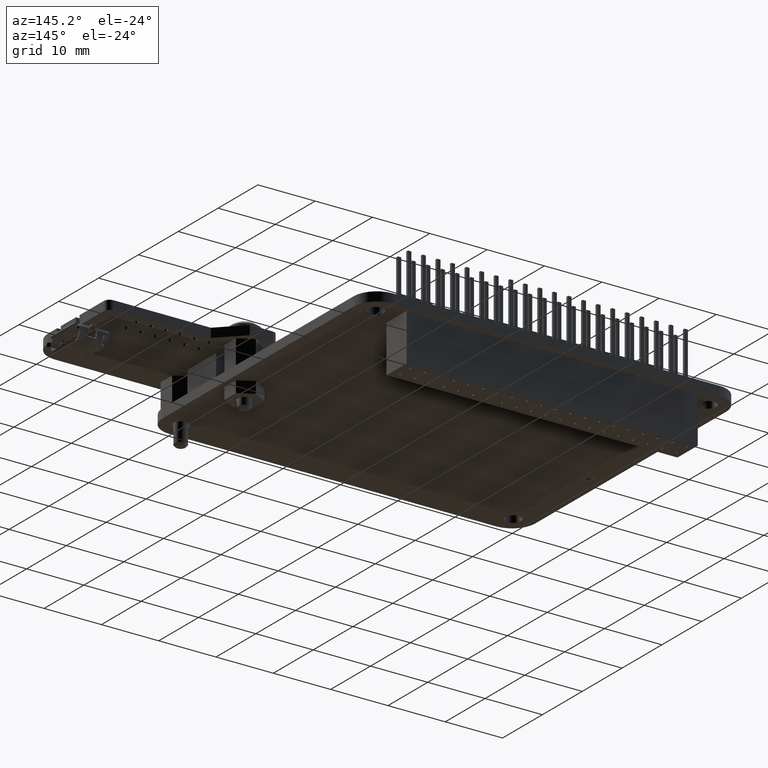
[diagram: clean part render]
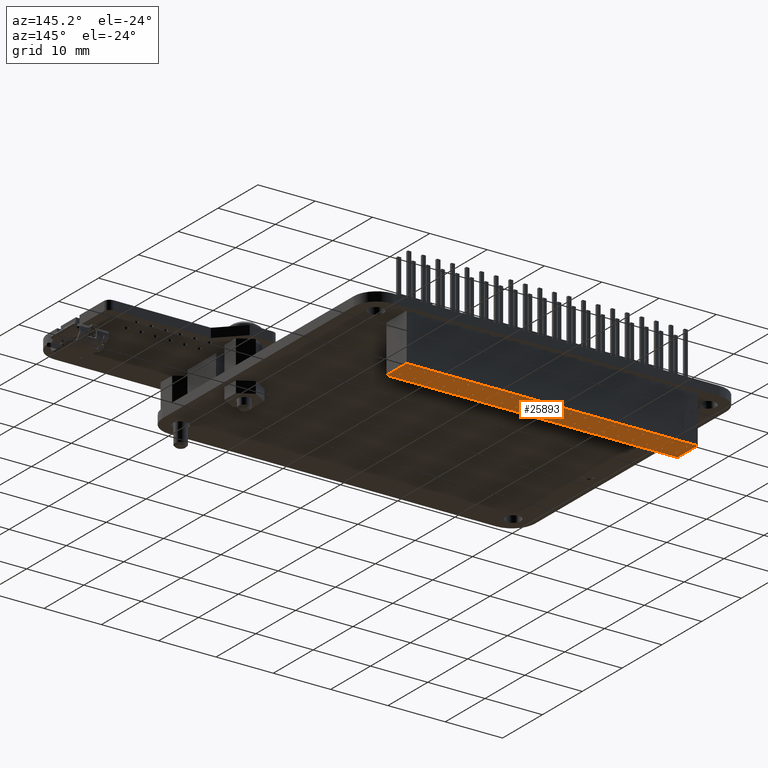
[diagram: same view with one face highlighted and labeled with its STEP entity id]
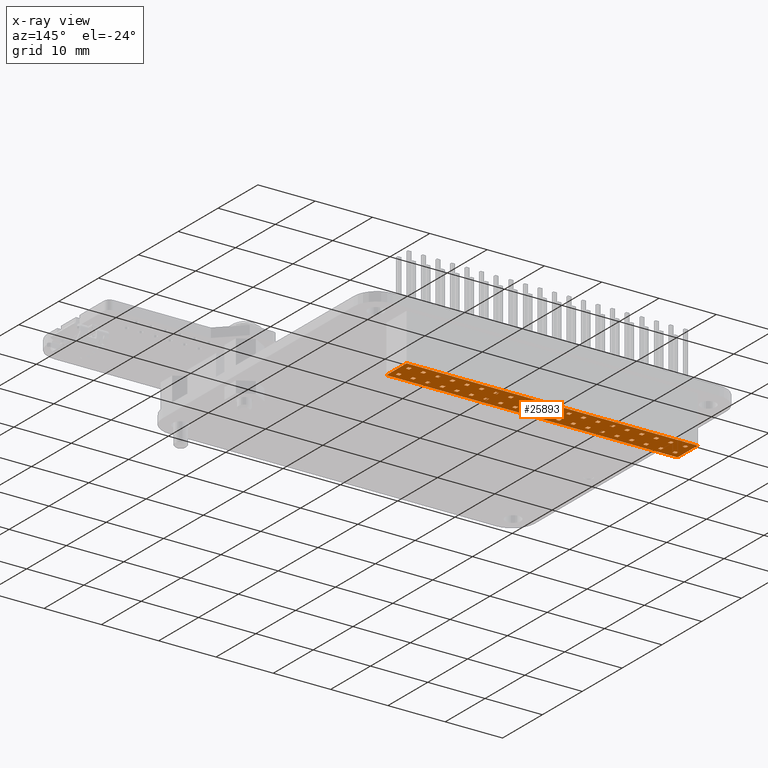
[diagram: x-ray of the same camera — body ghosted, the highlighted face saturated]
A machine part, auxiliary view. The second image highlights one B-rep face of the part: STEP entity #25893.
The next image is the same camera in x-ray: the body ghosted, the highlighted face saturated — about 0% of this face is hidden behind the body in this view.
In plain terms, the highlighted planar face has unit normal (0, 0, -1).
Its self-contained STEP definition (entity closure, byte-faithful):
#682=LINE('',#36796,#3629);
#686=LINE('',#36804,#3633);
#689=LINE('',#36810,#3636);
#692=LINE('',#36815,#3639);
#694=LINE('',#36821,#3641);
#698=LINE('',#36829,#3645);
#701=LINE('',#36835,#3648);
#704=LINE('',#36840,#3651);
#706=LINE('',#36846,#3653);
#710=LINE('',#36854,#3657);
#713=LINE('',#36860,#3660);
#716=LINE('',#36865,#3663);
#718=LINE('',#36871,#3665);
#722=LINE('',#36879,#3669);
#725=LINE('',#36885,#3672);
#728=LINE('',#36890,#3675);
#730=LINE('',#36896,#3677);
#734=LINE('',#36904,#3681);
#737=LINE('',#36910,#3684);
#740=LINE('',#36915,#3687);
#742=LINE('',#36921,#3689);
#746=LINE('',#36929,#3693);
#749=LINE('',#36935,#3696);
#752=LINE('',#36940,#3699);
#754=LINE('',#36946,#3701);
#758=LINE('',#36954,#3705);
#761=LINE('',#36960,#3708);
#764=LINE('',#36965,#3711);
#766=LINE('',#36971,#3713);
#770=LINE('',#36979,#3717);
#773=LINE('',#36985,#3720);
#776=LINE('',#36990,#3723);
#778=LINE('',#36996,#3725);
#782=LINE('',#37004,#3729);
#785=LINE('',#37010,#3732);
#788=LINE('',#37015,#3735);
#790=LINE('',#37021,#3737);
#794=LINE('',#37029,#3741);
#797=LINE('',#37035,#3744);
#800=LINE('',#37040,#3747);
#802=LINE('',#37046,#3749);
#806=LINE('',#37054,#3753);
#809=LINE('',#37060,#3756);
#812=LINE('',#37065,#3759);
#814=LINE('',#37071,#3761);
#818=LINE('',#37079,#3765);
#821=LINE('',#37085,#3768);
#824=LINE('',#37090,#3771);
#826=LINE('',#37096,#3773);
#830=LINE('',#37104,#3777);
#833=LINE('',#37110,#3780);
#836=LINE('',#37115,#3783);
#838=LINE('',#37121,#3785);
#842=LINE('',#37129,#3789);
#845=LINE('',#37135,#3792);
#848=LINE('',#37140,#3795);
#850=LINE('',#37146,#3797);
#854=LINE('',#37154,#3801);
#857=LINE('',#37160,#3804);
#860=LINE('',#37165,#3807);
#862=LINE('',#37171,#3809);
#866=LINE('',#37179,#3813);
#869=LINE('',#37185,#3816);
#872=LINE('',#37190,#3819);
#874=LINE('',#37196,#3821);
#878=LINE('',#37204,#3825);
#881=LINE('',#37210,#3828);
#884=LINE('',#37215,#3831);
#886=LINE('',#37221,#3833);
#890=LINE('',#37229,#3837);
#893=LINE('',#37235,#3840);
#896=LINE('',#37240,#3843);
#898=LINE('',#37246,#3845);
#902=LINE('',#37254,#3849);
#905=LINE('',#37260,#3852);
#908=LINE('',#37265,#3855);
#910=LINE('',#37271,#3857);
#914=LINE('',#37279,#3861);
#917=LINE('',#37285,#3864);
#920=LINE('',#37290,#3867);
#922=LINE('',#37296,#3869);
#926=LINE('',#37304,#3873);
#929=LINE('',#37310,#3876);
#932=LINE('',#37315,#3879);
#934=LINE('',#37321,#3881);
#938=LINE('',#37329,#3885);
#941=LINE('',#37335,#3888);
#944=LINE('',#37340,#3891);
#946=LINE('',#37346,#3893);
#950=LINE('',#37354,#3897);
#953=LINE('',#37360,#3900);
#956=LINE('',#37365,#3903);
#958=LINE('',#37371,#3905);
#962=LINE('',#37379,#3909);
#965=LINE('',#37385,#3912);
#968=LINE('',#37390,#3915);
#970=LINE('',#37396,#3917);
#974=LINE('',#37404,#3921);
#977=LINE('',#37410,#3924);
#980=LINE('',#37415,#3927);
#982=LINE('',#37421,#3929);
#986=LINE('',#37429,#3933);
#989=LINE('',#37435,#3936);
#992=LINE('',#37440,#3939);
#994=LINE('',#37446,#3941);
#998=LINE('',#37454,#3945);
#1001=LINE('',#37460,#3948);
#1004=LINE('',#37465,#3951);
#1006=LINE('',#37471,#3953);
#1010=LINE('',#37479,#3957);
#1013=LINE('',#37485,#3960);
#1016=LINE('',#37490,#3963);
#1018=LINE('',#37496,#3965);
#1022=LINE('',#37504,#3969);
#1025=LINE('',#37510,#3972);
#1028=LINE('',#37515,#3975);
#1030=LINE('',#37521,#3977);
#1034=LINE('',#37529,#3981);
#1037=LINE('',#37535,#3984);
#1040=LINE('',#37540,#3987);
#1042=LINE('',#37546,#3989);
#1046=LINE('',#37554,#3993);
#1049=LINE('',#37560,#3996);
#1052=LINE('',#37565,#3999);
#1054=LINE('',#37571,#4001);
#1058=LINE('',#37579,#4005);
#1061=LINE('',#37585,#4008);
#1064=LINE('',#37590,#4011);
#1066=LINE('',#37596,#4013);
#1070=LINE('',#37604,#4017);
#1073=LINE('',#37610,#4020);
#1076=LINE('',#37615,#4023);
#1078=LINE('',#37621,#4025);
#1082=LINE('',#37629,#4029);
#1085=LINE('',#37635,#4032);
#1088=LINE('',#37640,#4035);
#1090=LINE('',#37646,#4037);
#1094=LINE('',#37654,#4041);
#1097=LINE('',#37660,#4044);
#1100=LINE('',#37665,#4047);
#1102=LINE('',#37671,#4049);
#1106=LINE('',#37679,#4053);
#1109=LINE('',#37685,#4056);
#1112=LINE('',#37690,#4059);
#1114=LINE('',#37696,#4061);
#1118=LINE('',#37704,#4065);
#1121=LINE('',#37710,#4068);
#1124=LINE('',#37715,#4071);
#1126=LINE('',#37721,#4073);
#1130=LINE('',#37729,#4077);
#1133=LINE('',#37735,#4080);
#1136=LINE('',#37740,#4083);
#1138=LINE('',#37746,#4085);
#1142=LINE('',#37754,#4089);
#1145=LINE('',#37760,#4092);
#1148=LINE('',#37765,#4095);
#1462=LINE('',#38434,#4409);
#1466=LINE('',#38442,#4413);
#1469=LINE('',#38448,#4416);
#1472=LINE('',#38453,#4419);
#1483=LINE('',#38477,#4430);
#1485=LINE('',#38481,#4432);
#1487=LINE('',#38485,#4434);
#1489=LINE('',#38488,#4436);
#3629=VECTOR('',#29628,10.);
#3633=VECTOR('',#29634,10.);
#3636=VECTOR('',#29639,10.);
#3639=VECTOR('',#29644,10.);
#3641=VECTOR('',#29650,10.);
#3645=VECTOR('',#29656,10.);
#3648=VECTOR('',#29661,10.);
#3651=VECTOR('',#29666,10.);
#3653=VECTOR('',#29672,10.);
#3657=VECTOR('',#29678,10.);
#3660=VECTOR('',#29683,10.);
#3663=VECTOR('',#29688,10.);
#3665=VECTOR('',#29694,10.);
#3669=VECTOR('',#29700,10.);
#3672=VECTOR('',#29705,10.);
#3675=VECTOR('',#29710,10.);
#3677=VECTOR('',#29716,10.);
#3681=VECTOR('',#29722,10.);
#3684=VECTOR('',#29727,10.);
#3687=VECTOR('',#29732,10.);
#3689=VECTOR('',#29738,10.);
#3693=VECTOR('',#29744,10.);
#3696=VECTOR('',#29749,10.);
#3699=VECTOR('',#29754,10.);
#3701=VECTOR('',#29760,10.);
#3705=VECTOR('',#29766,10.);
#3708=VECTOR('',#29771,10.);
#3711=VECTOR('',#29776,10.);
#3713=VECTOR('',#29782,10.);
#3717=VECTOR('',#29788,10.);
#3720=VECTOR('',#29793,10.);
#3723=VECTOR('',#29798,10.);
#3725=VECTOR('',#29804,10.);
#3729=VECTOR('',#29810,10.);
#3732=VECTOR('',#29815,10.);
#3735=VECTOR('',#29820,10.);
#3737=VECTOR('',#29826,10.);
#3741=VECTOR('',#29832,10.);
#3744=VECTOR('',#29837,10.);
#3747=VECTOR('',#29842,10.);
#3749=VECTOR('',#29848,10.);
#3753=VECTOR('',#29854,10.);
#3756=VECTOR('',#29859,10.);
#3759=VECTOR('',#29864,10.);
#3761=VECTOR('',#29870,10.);
#3765=VECTOR('',#29876,10.);
#3768=VECTOR('',#29881,10.);
#3771=VECTOR('',#29886,10.);
#3773=VECTOR('',#29892,10.);
#3777=VECTOR('',#29898,10.);
#3780=VECTOR('',#29903,10.);
#3783=VECTOR('',#29908,10.);
#3785=VECTOR('',#29914,10.);
#3789=VECTOR('',#29920,10.);
#3792=VECTOR('',#29925,10.);
#3795=VECTOR('',#29930,10.);
#3797=VECTOR('',#29936,10.);
#3801=VECTOR('',#29942,10.);
#3804=VECTOR('',#29947,10.);
#3807=VECTOR('',#29952,10.);
#3809=VECTOR('',#29958,10.);
#3813=VECTOR('',#29964,10.);
#3816=VECTOR('',#29969,10.);
#3819=VECTOR('',#29974,10.);
#3821=VECTOR('',#29980,10.);
#3825=VECTOR('',#29986,10.);
#3828=VECTOR('',#29991,10.);
#3831=VECTOR('',#29996,10.);
#3833=VECTOR('',#30002,10.);
#3837=VECTOR('',#30008,10.);
#3840=VECTOR('',#30013,10.);
#3843=VECTOR('',#30018,10.);
#3845=VECTOR('',#30024,10.);
#3849=VECTOR('',#30030,10.);
#3852=VECTOR('',#30035,10.);
#3855=VECTOR('',#30040,10.);
#3857=VECTOR('',#30046,10.);
#3861=VECTOR('',#30052,10.);
#3864=VECTOR('',#30057,10.);
#3867=VECTOR('',#30062,10.);
#3869=VECTOR('',#30068,10.);
#3873=VECTOR('',#30074,10.);
#3876=VECTOR('',#30079,10.);
#3879=VECTOR('',#30084,10.);
#3881=VECTOR('',#30090,10.);
#3885=VECTOR('',#30096,10.);
#3888=VECTOR('',#30101,10.);
#3891=VECTOR('',#30106,10.);
#3893=VECTOR('',#30112,10.);
#3897=VECTOR('',#30118,10.);
#3900=VECTOR('',#30123,10.);
#3903=VECTOR('',#30128,10.);
#3905=VECTOR('',#30134,10.);
#3909=VECTOR('',#30140,10.);
#3912=VECTOR('',#30145,10.);
#3915=VECTOR('',#30150,10.);
#3917=VECTOR('',#30156,10.);
#3921=VECTOR('',#30162,10.);
#3924=VECTOR('',#30167,10.);
#3927=VECTOR('',#30172,10.);
#3929=VECTOR('',#30178,10.);
#3933=VECTOR('',#30184,10.);
#3936=VECTOR('',#30189,10.);
#3939=VECTOR('',#30194,10.);
#3941=VECTOR('',#30200,10.);
#3945=VECTOR('',#30206,10.);
#3948=VECTOR('',#30211,10.);
#3951=VECTOR('',#30216,10.);
#3953=VECTOR('',#30222,10.);
#3957=VECTOR('',#30228,10.);
#3960=VECTOR('',#30233,10.);
#3963=VECTOR('',#30238,10.);
#3965=VECTOR('',#30244,10.);
#3969=VECTOR('',#30250,10.);
#3972=VECTOR('',#30255,10.);
#3975=VECTOR('',#30260,10.);
#3977=VECTOR('',#30266,10.);
#3981=VECTOR('',#30272,10.);
#3984=VECTOR('',#30277,10.);
#3987=VECTOR('',#30282,10.);
#3989=VECTOR('',#30288,10.);
#3993=VECTOR('',#30294,10.);
#3996=VECTOR('',#30299,10.);
#3999=VECTOR('',#30304,10.);
#4001=VECTOR('',#30310,10.);
#4005=VECTOR('',#30316,10.);
#4008=VECTOR('',#30321,10.);
#4011=VECTOR('',#30326,10.);
#4013=VECTOR('',#30332,10.);
#4017=VECTOR('',#30338,10.);
#4020=VECTOR('',#30343,10.);
#4023=VECTOR('',#30348,10.);
#4025=VECTOR('',#30354,10.);
#4029=VECTOR('',#30360,10.);
#4032=VECTOR('',#30365,10.);
#4035=VECTOR('',#30370,10.);
#4037=VECTOR('',#30376,10.);
#4041=VECTOR('',#30382,10.);
#4044=VECTOR('',#30387,10.);
#4047=VECTOR('',#30392,10.);
#4049=VECTOR('',#30398,10.);
#4053=VECTOR('',#30404,10.);
#4056=VECTOR('',#30409,10.);
#4059=VECTOR('',#30414,10.);
#4061=VECTOR('',#30420,10.);
#4065=VECTOR('',#30426,10.);
#4068=VECTOR('',#30431,10.);
#4071=VECTOR('',#30436,10.);
#4073=VECTOR('',#30442,10.);
#4077=VECTOR('',#30448,10.);
#4080=VECTOR('',#30453,10.);
#4083=VECTOR('',#30458,10.);
#4085=VECTOR('',#30464,10.);
#4089=VECTOR('',#30470,10.);
#4092=VECTOR('',#30475,10.);
#4095=VECTOR('',#30480,10.);
#4409=VECTOR('',#31188,10.);
#4413=VECTOR('',#31194,10.);
#4416=VECTOR('',#31199,10.);
#4419=VECTOR('',#31204,10.);
#4430=VECTOR('',#31229,10.);
#4432=VECTOR('',#31233,10.);
#4434=VECTOR('',#31237,10.);
#4436=VECTOR('',#31241,10.);
#6630=PLANE('',#27382);
#8454=FACE_BOUND('',#10714,.T.);
#8455=FACE_BOUND('',#10715,.T.);
#8456=FACE_BOUND('',#10716,.T.);
#8457=FACE_BOUND('',#10717,.T.);
#8458=FACE_BOUND('',#10718,.T.);
#8459=FACE_BOUND('',#10719,.T.);
#8460=FACE_BOUND('',#10720,.T.);
#8461=FACE_BOUND('',#10721,.T.);
#8462=FACE_BOUND('',#10722,.T.);
#8463=FACE_BOUND('',#10723,.T.);
#8464=FACE_BOUND('',#10724,.T.);
#8465=FACE_BOUND('',#10725,.T.);
#8466=FACE_BOUND('',#10726,.T.);
#8467=FACE_BOUND('',#10727,.T.);
#8468=FACE_BOUND('',#10728,.T.);
#8469=FACE_BOUND('',#10729,.T.);
#8470=FACE_BOUND('',#10730,.T.);
#8471=FACE_BOUND('',#10731,.T.);
#8472=FACE_BOUND('',#10732,.T.);
#8473=FACE_BOUND('',#10733,.T.);
#8474=FACE_BOUND('',#10734,.T.);
#8475=FACE_BOUND('',#10735,.T.);
#8476=FACE_BOUND('',#10736,.T.);
#8477=FACE_BOUND('',#10737,.T.);
#8478=FACE_BOUND('',#10738,.T.);
#8479=FACE_BOUND('',#10739,.T.);
#8480=FACE_BOUND('',#10740,.T.);
#8481=FACE_BOUND('',#10741,.T.);
#8482=FACE_BOUND('',#10742,.T.);
#8483=FACE_BOUND('',#10743,.T.);
#8484=FACE_BOUND('',#10744,.T.);
#8485=FACE_BOUND('',#10745,.T.);
#8486=FACE_BOUND('',#10746,.T.);
#8487=FACE_BOUND('',#10747,.T.);
#8488=FACE_BOUND('',#10748,.T.);
#8489=FACE_BOUND('',#10749,.T.);
#8490=FACE_BOUND('',#10750,.T.);
#8491=FACE_BOUND('',#10751,.T.);
#8492=FACE_BOUND('',#10752,.T.);
#8493=FACE_BOUND('',#10753,.T.);
#9211=FACE_OUTER_BOUND('',#10713,.T.);
#10713=EDGE_LOOP('',(#20704,#20705,#20706,#20707));
#10714=EDGE_LOOP('',(#20708,#20709,#20710,#20711));
#10715=EDGE_LOOP('',(#20712,#20713,#20714,#20715));
#10716=EDGE_LOOP('',(#20716,#20717,#20718,#20719));
#10717=EDGE_LOOP('',(#20720,#20721,#20722,#20723));
#10718=EDGE_LOOP('',(#20724,#20725,#20726,#20727));
#10719=EDGE_LOOP('',(#20728,#20729,#20730,#20731));
#10720=EDGE_LOOP('',(#20732,#20733,#20734,#20735));
#10721=EDGE_LOOP('',(#20736,#20737,#20738,#20739));
#10722=EDGE_LOOP('',(#20740,#20741,#20742,#20743));
#10723=EDGE_LOOP('',(#20744,#20745,#20746,#20747));
#10724=EDGE_LOOP('',(#20748,#20749,#20750,#20751));
#10725=EDGE_LOOP('',(#20752,#20753,#20754,#20755));
#10726=EDGE_LOOP('',(#20756,#20757,#20758,#20759));
#10727=EDGE_LOOP('',(#20760,#20761,#20762,#20763));
#10728=EDGE_LOOP('',(#20764,#20765,#20766,#20767));
#10729=EDGE_LOOP('',(#20768,#20769,#20770,#20771));
#10730=EDGE_LOOP('',(#20772,#20773,#20774,#20775));
#10731=EDGE_LOOP('',(#20776,#20777,#20778,#20779));
#10732=EDGE_LOOP('',(#20780,#20781,#20782,#20783));
#10733=EDGE_LOOP('',(#20784,#20785,#20786,#20787));
#10734=EDGE_LOOP('',(#20788,#20789,#20790,#20791));
#10735=EDGE_LOOP('',(#20792,#20793,#20794,#20795));
#10736=EDGE_LOOP('',(#20796,#20797,#20798,#20799));
#10737=EDGE_LOOP('',(#20800,#20801,#20802,#20803));
#10738=EDGE_LOOP('',(#20804,#20805,#20806,#20807));
#10739=EDGE_LOOP('',(#20808,#20809,#20810,#20811));
#10740=EDGE_LOOP('',(#20812,#20813,#20814,#20815));
#10741=EDGE_LOOP('',(#20816,#20817,#20818,#20819));
#10742=EDGE_LOOP('',(#20820,#20821,#20822,#20823));
#10743=EDGE_LOOP('',(#20824,#20825,#20826,#20827));
#10744=EDGE_LOOP('',(#20828,#20829,#20830,#20831));
#10745=EDGE_LOOP('',(#20832,#20833,#20834,#20835));
#10746=EDGE_LOOP('',(#20836,#20837,#20838,#20839));
#10747=EDGE_LOOP('',(#20840,#20841,#20842,#20843));
#10748=EDGE_LOOP('',(#20844,#20845,#20846,#20847));
#10749=EDGE_LOOP('',(#20848,#20849,#20850,#20851));
#10750=EDGE_LOOP('',(#20852,#20853,#20854,#20855));
#10751=EDGE_LOOP('',(#20856,#20857,#20858,#20859));
#10752=EDGE_LOOP('',(#20860,#20861,#20862,#20863));
#10753=EDGE_LOOP('',(#20864,#20865,#20866,#20867));
#12730=VERTEX_POINT('',#36794);
#12731=VERTEX_POINT('',#36795);
#12734=VERTEX_POINT('',#36803);
#12736=VERTEX_POINT('',#36809);
#12738=VERTEX_POINT('',#36819);
#12739=VERTEX_POINT('',#36820);
#12742=VERTEX_POINT('',#36828);
#12744=VERTEX_POINT('',#36834);
#12746=VERTEX_POINT('',#36844);
#12747=VERTEX_POINT('',#36845);
#12750=VERTEX_POINT('',#36853);
#12752=VERTEX_POINT('',#36859);
#12754=VERTEX_POINT('',#36869);
#12755=VERTEX_POINT('',#36870);
#12758=VERTEX_POINT('',#36878);
#12760=VERTEX_POINT('',#36884);
#12762=VERTEX_POINT('',#36894);
#12763=VERTEX_POINT('',#36895);
#12766=VERTEX_POINT('',#36903);
#12768=VERTEX_POINT('',#36909);
#12770=VERTEX_POINT('',#36919);
#12771=VERTEX_POINT('',#36920);
#12774=VERTEX_POINT('',#36928);
#12776=VERTEX_POINT('',#36934);
#12778=VERTEX_POINT('',#36944);
#12779=VERTEX_POINT('',#36945);
#12782=VERTEX_POINT('',#36953);
#12784=VERTEX_POINT('',#36959);
#12786=VERTEX_POINT('',#36969);
#12787=VERTEX_POINT('',#36970);
#12790=VERTEX_POINT('',#36978);
#12792=VERTEX_POINT('',#36984);
#12794=VERTEX_POINT('',#36994);
#12795=VERTEX_POINT('',#36995);
#12798=VERTEX_POINT('',#37003);
#12800=VERTEX_POINT('',#37009);
#12802=VERTEX_POINT('',#37019);
#12803=VERTEX_POINT('',#37020);
#12806=VERTEX_POINT('',#37028);
#12808=VERTEX_POINT('',#37034);
#12810=VERTEX_POINT('',#37044);
#12811=VERTEX_POINT('',#37045);
#12814=VERTEX_POINT('',#37053);
#12816=VERTEX_POINT('',#37059);
#12818=VERTEX_POINT('',#37069);
#12819=VERTEX_POINT('',#37070);
#12822=VERTEX_POINT('',#37078);
#12824=VERTEX_POINT('',#37084);
#12826=VERTEX_POINT('',#37094);
#12827=VERTEX_POINT('',#37095);
#12830=VERTEX_POINT('',#37103);
#12832=VERTEX_POINT('',#37109);
#12834=VERTEX_POINT('',#37119);
#12835=VERTEX_POINT('',#37120);
#12838=VERTEX_POINT('',#37128);
#12840=VERTEX_POINT('',#37134);
#12842=VERTEX_POINT('',#37144);
#12843=VERTEX_POINT('',#37145);
#12846=VERTEX_POINT('',#37153);
#12848=VERTEX_POINT('',#37159);
#12850=VERTEX_POINT('',#37169);
#12851=VERTEX_POINT('',#37170);
#12854=VERTEX_POINT('',#37178);
#12856=VERTEX_POINT('',#37184);
#12858=VERTEX_POINT('',#37194);
#12859=VERTEX_POINT('',#37195);
#12862=VERTEX_POINT('',#37203);
#12864=VERTEX_POINT('',#37209);
#12866=VERTEX_POINT('',#37219);
#12867=VERTEX_POINT('',#37220);
#12870=VERTEX_POINT('',#37228);
#12872=VERTEX_POINT('',#37234);
#12874=VERTEX_POINT('',#37244);
#12875=VERTEX_POINT('',#37245);
#12878=VERTEX_POINT('',#37253);
#12880=VERTEX_POINT('',#37259);
#12882=VERTEX_POINT('',#37269);
#12883=VERTEX_POINT('',#37270);
#12886=VERTEX_POINT('',#37278);
#12888=VERTEX_POINT('',#37284);
#12890=VERTEX_POINT('',#37294);
#12891=VERTEX_POINT('',#37295);
#12894=VERTEX_POINT('',#37303);
#12896=VERTEX_POINT('',#37309);
#12898=VERTEX_POINT('',#37319);
#12899=VERTEX_POINT('',#37320);
#12902=VERTEX_POINT('',#37328);
#12904=VERTEX_POINT('',#37334);
#12906=VERTEX_POINT('',#37344);
#12907=VERTEX_POINT('',#37345);
#12910=VERTEX_POINT('',#37353);
#12912=VERTEX_POINT('',#37359);
#12914=VERTEX_POINT('',#37369);
#12915=VERTEX_POINT('',#37370);
#12918=VERTEX_POINT('',#37378);
#12920=VERTEX_POINT('',#37384);
#12922=VERTEX_POINT('',#37394);
#12923=VERTEX_POINT('',#37395);
#12926=VERTEX_POINT('',#37403);
#12928=VERTEX_POINT('',#37409);
#12930=VERTEX_POINT('',#37419);
#12931=VERTEX_POINT('',#37420);
#12934=VERTEX_POINT('',#37428);
#12936=VERTEX_POINT('',#37434);
#12938=VERTEX_POINT('',#37444);
#12939=VERTEX_POINT('',#37445);
#12942=VERTEX_POINT('',#37453);
#12944=VERTEX_POINT('',#37459);
#12946=VERTEX_POINT('',#37469);
#12947=VERTEX_POINT('',#37470);
#12950=VERTEX_POINT('',#37478);
#12952=VERTEX_POINT('',#37484);
#12954=VERTEX_POINT('',#37494);
#12955=VERTEX_POINT('',#37495);
#12958=VERTEX_POINT('',#37503);
#12960=VERTEX_POINT('',#37509);
#12962=VERTEX_POINT('',#37519);
#12963=VERTEX_POINT('',#37520);
#12966=VERTEX_POINT('',#37528);
#12968=VERTEX_POINT('',#37534);
#12970=VERTEX_POINT('',#37544);
#12971=VERTEX_POINT('',#37545);
#12974=VERTEX_POINT('',#37553);
#12976=VERTEX_POINT('',#37559);
#12978=VERTEX_POINT('',#37569);
#12979=VERTEX_POINT('',#37570);
#12982=VERTEX_POINT('',#37578);
#12984=VERTEX_POINT('',#37584);
#12986=VERTEX_POINT('',#37594);
#12987=VERTEX_POINT('',#37595);
#12990=VERTEX_POINT('',#37603);
#12992=VERTEX_POINT('',#37609);
#12994=VERTEX_POINT('',#37619);
#12995=VERTEX_POINT('',#37620);
#12998=VERTEX_POINT('',#37628);
#13000=VERTEX_POINT('',#37634);
#13002=VERTEX_POINT('',#37644);
#13003=VERTEX_POINT('',#37645);
#13006=VERTEX_POINT('',#37653);
#13008=VERTEX_POINT('',#37659);
#13010=VERTEX_POINT('',#37669);
#13011=VERTEX_POINT('',#37670);
#13014=VERTEX_POINT('',#37678);
#13016=VERTEX_POINT('',#37684);
#13018=VERTEX_POINT('',#37694);
#13019=VERTEX_POINT('',#37695);
#13022=VERTEX_POINT('',#37703);
#13024=VERTEX_POINT('',#37709);
#13026=VERTEX_POINT('',#37719);
#13027=VERTEX_POINT('',#37720);
#13030=VERTEX_POINT('',#37728);
#13032=VERTEX_POINT('',#37734);
#13034=VERTEX_POINT('',#37744);
#13035=VERTEX_POINT('',#37745);
#13038=VERTEX_POINT('',#37753);
#13040=VERTEX_POINT('',#37759);
#13198=VERTEX_POINT('',#38432);
#13199=VERTEX_POINT('',#38433);
#13202=VERTEX_POINT('',#38441);
#13204=VERTEX_POINT('',#38447);
#13210=VERTEX_POINT('',#38474);
#13211=VERTEX_POINT('',#38476);
#13212=VERTEX_POINT('',#38480);
#13213=VERTEX_POINT('',#38484);
#15202=EDGE_CURVE('',#12730,#12731,#682,.T.);
#15206=EDGE_CURVE('',#12734,#12730,#686,.T.);
#15209=EDGE_CURVE('',#12736,#12734,#689,.T.);
#15212=EDGE_CURVE('',#12731,#12736,#692,.T.);
#15214=EDGE_CURVE('',#12738,#12739,#694,.T.);
#15218=EDGE_CURVE('',#12742,#12738,#698,.T.);
#15221=EDGE_CURVE('',#12744,#12742,#701,.T.);
#15224=EDGE_CURVE('',#12739,#12744,#704,.T.);
#15226=EDGE_CURVE('',#12746,#12747,#706,.T.);
#15230=EDGE_CURVE('',#12750,#12746,#710,.T.);
#15233=EDGE_CURVE('',#12752,#12750,#713,.T.);
#15236=EDGE_CURVE('',#12747,#12752,#716,.T.);
#15238=EDGE_CURVE('',#12754,#12755,#718,.T.);
#15242=EDGE_CURVE('',#12758,#12754,#722,.T.);
#15245=EDGE_CURVE('',#12760,#12758,#725,.T.);
#15248=EDGE_CURVE('',#12755,#12760,#728,.T.);
#15250=EDGE_CURVE('',#12762,#12763,#730,.T.);
#15254=EDGE_CURVE('',#12766,#12762,#734,.T.);
#15257=EDGE_CURVE('',#12768,#12766,#737,.T.);
#15260=EDGE_CURVE('',#12763,#12768,#740,.T.);
#15262=EDGE_CURVE('',#12770,#12771,#742,.T.);
#15266=EDGE_CURVE('',#12774,#12770,#746,.T.);
#15269=EDGE_CURVE('',#12776,#12774,#749,.T.);
#15272=EDGE_CURVE('',#12771,#12776,#752,.T.);
#15274=EDGE_CURVE('',#12778,#12779,#754,.T.);
#15278=EDGE_CURVE('',#12782,#12778,#758,.T.);
#15281=EDGE_CURVE('',#12784,#12782,#761,.T.);
#15284=EDGE_CURVE('',#12779,#12784,#764,.T.);
#15286=EDGE_CURVE('',#12786,#12787,#766,.T.);
#15290=EDGE_CURVE('',#12790,#12786,#770,.T.);
#15293=EDGE_CURVE('',#12792,#12790,#773,.T.);
#15296=EDGE_CURVE('',#12787,#12792,#776,.T.);
#15298=EDGE_CURVE('',#12794,#12795,#778,.T.);
#15302=EDGE_CURVE('',#12798,#12794,#782,.T.);
#15305=EDGE_CURVE('',#12800,#12798,#785,.T.);
#15308=EDGE_CURVE('',#12795,#12800,#788,.T.);
#15310=EDGE_CURVE('',#12802,#12803,#790,.T.);
#15314=EDGE_CURVE('',#12806,#12802,#794,.T.);
#15317=EDGE_CURVE('',#12808,#12806,#797,.T.);
#15320=EDGE_CURVE('',#12803,#12808,#800,.T.);
#15322=EDGE_CURVE('',#12810,#12811,#802,.T.);
#15326=EDGE_CURVE('',#12814,#12810,#806,.T.);
#15329=EDGE_CURVE('',#12816,#12814,#809,.T.);
#15332=EDGE_CURVE('',#12811,#12816,#812,.T.);
#15334=EDGE_CURVE('',#12818,#12819,#814,.T.);
#15338=EDGE_CURVE('',#12822,#12818,#818,.T.);
#15341=EDGE_CURVE('',#12824,#12822,#821,.T.);
#15344=EDGE_CURVE('',#12819,#12824,#824,.T.);
#15346=EDGE_CURVE('',#12826,#12827,#826,.T.);
#15350=EDGE_CURVE('',#12830,#12826,#830,.T.);
#15353=EDGE_CURVE('',#12832,#12830,#833,.T.);
#15356=EDGE_CURVE('',#12827,#12832,#836,.T.);
#15358=EDGE_CURVE('',#12834,#12835,#838,.T.);
#15362=EDGE_CURVE('',#12838,#12834,#842,.T.);
#15365=EDGE_CURVE('',#12840,#12838,#845,.T.);
#15368=EDGE_CURVE('',#12835,#12840,#848,.T.);
#15370=EDGE_CURVE('',#12842,#12843,#850,.T.);
#15374=EDGE_CURVE('',#12846,#12842,#854,.T.);
#15377=EDGE_CURVE('',#12848,#12846,#857,.T.);
#15380=EDGE_CURVE('',#12843,#12848,#860,.T.);
#15382=EDGE_CURVE('',#12850,#12851,#862,.T.);
#15386=EDGE_CURVE('',#12854,#12850,#866,.T.);
#15389=EDGE_CURVE('',#12856,#12854,#869,.T.);
#15392=EDGE_CURVE('',#12851,#12856,#872,.T.);
#15394=EDGE_CURVE('',#12858,#12859,#874,.T.);
#15398=EDGE_CURVE('',#12862,#12858,#878,.T.);
#15401=EDGE_CURVE('',#12864,#12862,#881,.T.);
#15404=EDGE_CURVE('',#12859,#12864,#884,.T.);
#15406=EDGE_CURVE('',#12866,#12867,#886,.T.);
#15410=EDGE_CURVE('',#12870,#12866,#890,.T.);
#15413=EDGE_CURVE('',#12872,#12870,#893,.T.);
#15416=EDGE_CURVE('',#12867,#12872,#896,.T.);
#15418=EDGE_CURVE('',#12874,#12875,#898,.T.);
#15422=EDGE_CURVE('',#12878,#12874,#902,.T.);
#15425=EDGE_CURVE('',#12880,#12878,#905,.T.);
#15428=EDGE_CURVE('',#12875,#12880,#908,.T.);
#15430=EDGE_CURVE('',#12882,#12883,#910,.T.);
#15434=EDGE_CURVE('',#12886,#12882,#914,.T.);
#15437=EDGE_CURVE('',#12888,#12886,#917,.T.);
#15440=EDGE_CURVE('',#12883,#12888,#920,.T.);
#15442=EDGE_CURVE('',#12890,#12891,#922,.T.);
#15446=EDGE_CURVE('',#12894,#12890,#926,.T.);
#15449=EDGE_CURVE('',#12896,#12894,#929,.T.);
#15452=EDGE_CURVE('',#12891,#12896,#932,.T.);
#15454=EDGE_CURVE('',#12898,#12899,#934,.T.);
#15458=EDGE_CURVE('',#12902,#12898,#938,.T.);
#15461=EDGE_CURVE('',#12904,#12902,#941,.T.);
#15464=EDGE_CURVE('',#12899,#12904,#944,.T.);
#15466=EDGE_CURVE('',#12906,#12907,#946,.T.);
#15470=EDGE_CURVE('',#12910,#12906,#950,.T.);
#15473=EDGE_CURVE('',#12912,#12910,#953,.T.);
#15476=EDGE_CURVE('',#12907,#12912,#956,.T.);
#15478=EDGE_CURVE('',#12914,#12915,#958,.T.);
#15482=EDGE_CURVE('',#12918,#12914,#962,.T.);
#15485=EDGE_CURVE('',#12920,#12918,#965,.T.);
#15488=EDGE_CURVE('',#12915,#12920,#968,.T.);
#15490=EDGE_CURVE('',#12922,#12923,#970,.T.);
#15494=EDGE_CURVE('',#12926,#12922,#974,.T.);
#15497=EDGE_CURVE('',#12928,#12926,#977,.T.);
#15500=EDGE_CURVE('',#12923,#12928,#980,.T.);
#15502=EDGE_CURVE('',#12930,#12931,#982,.T.);
#15506=EDGE_CURVE('',#12934,#12930,#986,.T.);
#15509=EDGE_CURVE('',#12936,#12934,#989,.T.);
#15512=EDGE_CURVE('',#12931,#12936,#992,.T.);
#15514=EDGE_CURVE('',#12938,#12939,#994,.T.);
#15518=EDGE_CURVE('',#12942,#12938,#998,.T.);
#15521=EDGE_CURVE('',#12944,#12942,#1001,.T.);
#15524=EDGE_CURVE('',#12939,#12944,#1004,.T.);
#15526=EDGE_CURVE('',#12946,#12947,#1006,.T.);
#15530=EDGE_CURVE('',#12950,#12946,#1010,.T.);
#15533=EDGE_CURVE('',#12952,#12950,#1013,.T.);
#15536=EDGE_CURVE('',#12947,#12952,#1016,.T.);
#15538=EDGE_CURVE('',#12954,#12955,#1018,.T.);
#15542=EDGE_CURVE('',#12958,#12954,#1022,.T.);
#15545=EDGE_CURVE('',#12960,#12958,#1025,.T.);
#15548=EDGE_CURVE('',#12955,#12960,#1028,.T.);
#15550=EDGE_CURVE('',#12962,#12963,#1030,.T.);
#15554=EDGE_CURVE('',#12966,#12962,#1034,.T.);
#15557=EDGE_CURVE('',#12968,#12966,#1037,.T.);
#15560=EDGE_CURVE('',#12963,#12968,#1040,.T.);
#15562=EDGE_CURVE('',#12970,#12971,#1042,.T.);
#15566=EDGE_CURVE('',#12974,#12970,#1046,.T.);
#15569=EDGE_CURVE('',#12976,#12974,#1049,.T.);
#15572=EDGE_CURVE('',#12971,#12976,#1052,.T.);
#15574=EDGE_CURVE('',#12978,#12979,#1054,.T.);
#15578=EDGE_CURVE('',#12982,#12978,#1058,.T.);
#15581=EDGE_CURVE('',#12984,#12982,#1061,.T.);
#15584=EDGE_CURVE('',#12979,#12984,#1064,.T.);
#15586=EDGE_CURVE('',#12986,#12987,#1066,.T.);
#15590=EDGE_CURVE('',#12990,#12986,#1070,.T.);
#15593=EDGE_CURVE('',#12992,#12990,#1073,.T.);
#15596=EDGE_CURVE('',#12987,#12992,#1076,.T.);
#15598=EDGE_CURVE('',#12994,#12995,#1078,.T.);
#15602=EDGE_CURVE('',#12998,#12994,#1082,.T.);
#15605=EDGE_CURVE('',#13000,#12998,#1085,.T.);
#15608=EDGE_CURVE('',#12995,#13000,#1088,.T.);
#15610=EDGE_CURVE('',#13002,#13003,#1090,.T.);
#15614=EDGE_CURVE('',#13006,#13002,#1094,.T.);
#15617=EDGE_CURVE('',#13008,#13006,#1097,.T.);
#15620=EDGE_CURVE('',#13003,#13008,#1100,.T.);
#15622=EDGE_CURVE('',#13010,#13011,#1102,.T.);
#15626=EDGE_CURVE('',#13014,#13010,#1106,.T.);
#15629=EDGE_CURVE('',#13016,#13014,#1109,.T.);
#15632=EDGE_CURVE('',#13011,#13016,#1112,.T.);
#15634=EDGE_CURVE('',#13018,#13019,#1114,.T.);
#15638=EDGE_CURVE('',#13022,#13018,#1118,.T.);
#15641=EDGE_CURVE('',#13024,#13022,#1121,.T.);
#15644=EDGE_CURVE('',#13019,#13024,#1124,.T.);
#15646=EDGE_CURVE('',#13026,#13027,#1126,.T.);
#15650=EDGE_CURVE('',#13030,#13026,#1130,.T.);
#15653=EDGE_CURVE('',#13032,#13030,#1133,.T.);
#15656=EDGE_CURVE('',#13027,#13032,#1136,.T.);
#15658=EDGE_CURVE('',#13034,#13035,#1138,.T.);
#15662=EDGE_CURVE('',#13038,#13034,#1142,.T.);
#15665=EDGE_CURVE('',#13040,#13038,#1145,.T.);
#15668=EDGE_CURVE('',#13035,#13040,#1148,.T.);
#15982=EDGE_CURVE('',#13198,#13199,#1462,.T.);
#15986=EDGE_CURVE('',#13202,#13198,#1466,.T.);
#15989=EDGE_CURVE('',#13204,#13202,#1469,.T.);
#15992=EDGE_CURVE('',#13199,#13204,#1472,.T.);
#16003=EDGE_CURVE('',#13211,#13210,#1483,.T.);
#16005=EDGE_CURVE('',#13212,#13211,#1485,.T.);
#16007=EDGE_CURVE('',#13213,#13212,#1487,.T.);
#16009=EDGE_CURVE('',#13210,#13213,#1489,.T.);
#20704=ORIENTED_EDGE('',*,*,#16009,.T.);
#20705=ORIENTED_EDGE('',*,*,#16007,.T.);
#20706=ORIENTED_EDGE('',*,*,#16005,.T.);
#20707=ORIENTED_EDGE('',*,*,#16003,.T.);
#20708=ORIENTED_EDGE('',*,*,#15202,.T.);
#20709=ORIENTED_EDGE('',*,*,#15212,.T.);
#20710=ORIENTED_EDGE('',*,*,#15209,.T.);
#20711=ORIENTED_EDGE('',*,*,#15206,.T.);
#20712=ORIENTED_EDGE('',*,*,#15214,.T.);
#20713=ORIENTED_EDGE('',*,*,#15224,.T.);
#20714=ORIENTED_EDGE('',*,*,#15221,.T.);
#20715=ORIENTED_EDGE('',*,*,#15218,.T.);
#20716=ORIENTED_EDGE('',*,*,#15226,.T.);
#20717=ORIENTED_EDGE('',*,*,#15236,.T.);
#20718=ORIENTED_EDGE('',*,*,#15233,.T.);
#20719=ORIENTED_EDGE('',*,*,#15230,.T.);
#20720=ORIENTED_EDGE('',*,*,#15238,.T.);
#20721=ORIENTED_EDGE('',*,*,#15248,.T.);
#20722=ORIENTED_EDGE('',*,*,#15245,.T.);
#20723=ORIENTED_EDGE('',*,*,#15242,.T.);
#20724=ORIENTED_EDGE('',*,*,#15250,.T.);
#20725=ORIENTED_EDGE('',*,*,#15260,.T.);
#20726=ORIENTED_EDGE('',*,*,#15257,.T.);
#20727=ORIENTED_EDGE('',*,*,#15254,.T.);
#20728=ORIENTED_EDGE('',*,*,#15262,.T.);
#20729=ORIENTED_EDGE('',*,*,#15272,.T.);
#20730=ORIENTED_EDGE('',*,*,#15269,.T.);
#20731=ORIENTED_EDGE('',*,*,#15266,.T.);
#20732=ORIENTED_EDGE('',*,*,#15274,.T.);
#20733=ORIENTED_EDGE('',*,*,#15284,.T.);
#20734=ORIENTED_EDGE('',*,*,#15281,.T.);
#20735=ORIENTED_EDGE('',*,*,#15278,.T.);
#20736=ORIENTED_EDGE('',*,*,#15286,.T.);
#20737=ORIENTED_EDGE('',*,*,#15296,.T.);
#20738=ORIENTED_EDGE('',*,*,#15293,.T.);
#20739=ORIENTED_EDGE('',*,*,#15290,.T.);
#20740=ORIENTED_EDGE('',*,*,#15298,.T.);
#20741=ORIENTED_EDGE('',*,*,#15308,.T.);
#20742=ORIENTED_EDGE('',*,*,#15305,.T.);
#20743=ORIENTED_EDGE('',*,*,#15302,.T.);
#20744=ORIENTED_EDGE('',*,*,#15310,.T.);
#20745=ORIENTED_EDGE('',*,*,#15320,.T.);
#20746=ORIENTED_EDGE('',*,*,#15317,.T.);
#20747=ORIENTED_EDGE('',*,*,#15314,.T.);
#20748=ORIENTED_EDGE('',*,*,#15322,.T.);
#20749=ORIENTED_EDGE('',*,*,#15332,.T.);
#20750=ORIENTED_EDGE('',*,*,#15329,.T.);
#20751=ORIENTED_EDGE('',*,*,#15326,.T.);
#20752=ORIENTED_EDGE('',*,*,#15334,.T.);
#20753=ORIENTED_EDGE('',*,*,#15344,.T.);
#20754=ORIENTED_EDGE('',*,*,#15341,.T.);
#20755=ORIENTED_EDGE('',*,*,#15338,.T.);
#20756=ORIENTED_EDGE('',*,*,#15346,.T.);
#20757=ORIENTED_EDGE('',*,*,#15356,.T.);
#20758=ORIENTED_EDGE('',*,*,#15353,.T.);
#20759=ORIENTED_EDGE('',*,*,#15350,.T.);
#20760=ORIENTED_EDGE('',*,*,#15358,.T.);
#20761=ORIENTED_EDGE('',*,*,#15368,.T.);
#20762=ORIENTED_EDGE('',*,*,#15365,.T.);
#20763=ORIENTED_EDGE('',*,*,#15362,.T.);
#20764=ORIENTED_EDGE('',*,*,#15370,.T.);
#20765=ORIENTED_EDGE('',*,*,#15380,.T.);
#20766=ORIENTED_EDGE('',*,*,#15377,.T.);
#20767=ORIENTED_EDGE('',*,*,#15374,.T.);
#20768=ORIENTED_EDGE('',*,*,#15382,.T.);
#20769=ORIENTED_EDGE('',*,*,#15392,.T.);
#20770=ORIENTED_EDGE('',*,*,#15389,.T.);
#20771=ORIENTED_EDGE('',*,*,#15386,.T.);
#20772=ORIENTED_EDGE('',*,*,#15394,.T.);
#20773=ORIENTED_EDGE('',*,*,#15404,.T.);
#20774=ORIENTED_EDGE('',*,*,#15401,.T.);
#20775=ORIENTED_EDGE('',*,*,#15398,.T.);
#20776=ORIENTED_EDGE('',*,*,#15406,.T.);
#20777=ORIENTED_EDGE('',*,*,#15416,.T.);
#20778=ORIENTED_EDGE('',*,*,#15413,.T.);
#20779=ORIENTED_EDGE('',*,*,#15410,.T.);
#20780=ORIENTED_EDGE('',*,*,#15418,.T.);
#20781=ORIENTED_EDGE('',*,*,#15428,.T.);
#20782=ORIENTED_EDGE('',*,*,#15425,.T.);
#20783=ORIENTED_EDGE('',*,*,#15422,.T.);
#20784=ORIENTED_EDGE('',*,*,#15430,.T.);
#20785=ORIENTED_EDGE('',*,*,#15440,.T.);
#20786=ORIENTED_EDGE('',*,*,#15437,.T.);
#20787=ORIENTED_EDGE('',*,*,#15434,.T.);
#20788=ORIENTED_EDGE('',*,*,#15442,.T.);
#20789=ORIENTED_EDGE('',*,*,#15452,.T.);
#20790=ORIENTED_EDGE('',*,*,#15449,.T.);
#20791=ORIENTED_EDGE('',*,*,#15446,.T.);
#20792=ORIENTED_EDGE('',*,*,#15454,.T.);
#20793=ORIENTED_EDGE('',*,*,#15464,.T.);
#20794=ORIENTED_EDGE('',*,*,#15461,.T.);
#20795=ORIENTED_EDGE('',*,*,#15458,.T.);
#20796=ORIENTED_EDGE('',*,*,#15466,.T.);
#20797=ORIENTED_EDGE('',*,*,#15476,.T.);
#20798=ORIENTED_EDGE('',*,*,#15473,.T.);
#20799=ORIENTED_EDGE('',*,*,#15470,.T.);
#20800=ORIENTED_EDGE('',*,*,#15478,.T.);
#20801=ORIENTED_EDGE('',*,*,#15488,.T.);
#20802=ORIENTED_EDGE('',*,*,#15485,.T.);
#20803=ORIENTED_EDGE('',*,*,#15482,.T.);
#20804=ORIENTED_EDGE('',*,*,#15490,.T.);
#20805=ORIENTED_EDGE('',*,*,#15500,.T.);
#20806=ORIENTED_EDGE('',*,*,#15497,.T.);
#20807=ORIENTED_EDGE('',*,*,#15494,.T.);
#20808=ORIENTED_EDGE('',*,*,#15502,.T.);
#20809=ORIENTED_EDGE('',*,*,#15512,.T.);
#20810=ORIENTED_EDGE('',*,*,#15509,.T.);
#20811=ORIENTED_EDGE('',*,*,#15506,.T.);
#20812=ORIENTED_EDGE('',*,*,#15514,.T.);
#20813=ORIENTED_EDGE('',*,*,#15524,.T.);
#20814=ORIENTED_EDGE('',*,*,#15521,.T.);
#20815=ORIENTED_EDGE('',*,*,#15518,.T.);
#20816=ORIENTED_EDGE('',*,*,#15526,.T.);
#20817=ORIENTED_EDGE('',*,*,#15536,.T.);
#20818=ORIENTED_EDGE('',*,*,#15533,.T.);
#20819=ORIENTED_EDGE('',*,*,#15530,.T.);
#20820=ORIENTED_EDGE('',*,*,#15538,.T.);
#20821=ORIENTED_EDGE('',*,*,#15548,.T.);
#20822=ORIENTED_EDGE('',*,*,#15545,.T.);
#20823=ORIENTED_EDGE('',*,*,#15542,.T.);
#20824=ORIENTED_EDGE('',*,*,#15550,.T.);
#20825=ORIENTED_EDGE('',*,*,#15560,.T.);
#20826=ORIENTED_EDGE('',*,*,#15557,.T.);
#20827=ORIENTED_EDGE('',*,*,#15554,.T.);
#20828=ORIENTED_EDGE('',*,*,#15562,.T.);
#20829=ORIENTED_EDGE('',*,*,#15572,.T.);
#20830=ORIENTED_EDGE('',*,*,#15569,.T.);
#20831=ORIENTED_EDGE('',*,*,#15566,.T.);
#20832=ORIENTED_EDGE('',*,*,#15574,.T.);
#20833=ORIENTED_EDGE('',*,*,#15584,.T.);
#20834=ORIENTED_EDGE('',*,*,#15581,.T.);
#20835=ORIENTED_EDGE('',*,*,#15578,.T.);
#20836=ORIENTED_EDGE('',*,*,#15586,.T.);
#20837=ORIENTED_EDGE('',*,*,#15596,.T.);
#20838=ORIENTED_EDGE('',*,*,#15593,.T.);
#20839=ORIENTED_EDGE('',*,*,#15590,.T.);
#20840=ORIENTED_EDGE('',*,*,#15598,.T.);
#20841=ORIENTED_EDGE('',*,*,#15608,.T.);
#20842=ORIENTED_EDGE('',*,*,#15605,.T.);
#20843=ORIENTED_EDGE('',*,*,#15602,.T.);
#20844=ORIENTED_EDGE('',*,*,#15610,.T.);
#20845=ORIENTED_EDGE('',*,*,#15620,.T.);
#20846=ORIENTED_EDGE('',*,*,#15617,.T.);
#20847=ORIENTED_EDGE('',*,*,#15614,.T.);
#20848=ORIENTED_EDGE('',*,*,#15622,.T.);
#20849=ORIENTED_EDGE('',*,*,#15632,.T.);
#20850=ORIENTED_EDGE('',*,*,#15629,.T.);
#20851=ORIENTED_EDGE('',*,*,#15626,.T.);
#20852=ORIENTED_EDGE('',*,*,#15634,.T.);
#20853=ORIENTED_EDGE('',*,*,#15644,.T.);
#20854=ORIENTED_EDGE('',*,*,#15641,.T.);
#20855=ORIENTED_EDGE('',*,*,#15638,.T.);
#20856=ORIENTED_EDGE('',*,*,#15646,.T.);
#20857=ORIENTED_EDGE('',*,*,#15656,.T.);
#20858=ORIENTED_EDGE('',*,*,#15653,.T.);
#20859=ORIENTED_EDGE('',*,*,#15650,.T.);
#20860=ORIENTED_EDGE('',*,*,#15658,.T.);
#20861=ORIENTED_EDGE('',*,*,#15668,.T.);
#20862=ORIENTED_EDGE('',*,*,#15665,.T.);
#20863=ORIENTED_EDGE('',*,*,#15662,.T.);
#20864=ORIENTED_EDGE('',*,*,#15982,.T.);
#20865=ORIENTED_EDGE('',*,*,#15992,.T.);
#20866=ORIENTED_EDGE('',*,*,#15989,.T.);
#20867=ORIENTED_EDGE('',*,*,#15986,.T.);
#25893=ADVANCED_FACE('',(#9211,#8454,#8455,#8456,#8457,#8458,#8459,#8460,
#8461,#8462,#8463,#8464,#8465,#8466,#8467,#8468,#8469,#8470,#8471,#8472,
#8473,#8474,#8475,#8476,#8477,#8478,#8479,#8480,#8481,#8482,#8483,#8484,
#8485,#8486,#8487,#8488,#8489,#8490,#8491,#8492,#8493),#6630,.T.);
#27382=AXIS2_PLACEMENT_3D('',#38489,#31242,#31243);
#29628=DIRECTION('',(-1.,0.,0.));
#29634=DIRECTION('',(-1.48029736616687E-14,1.,0.));
#29639=DIRECTION('',(1.,0.,0.));
#29644=DIRECTION('',(-7.40148683083437E-15,-1.,0.));
#29650=DIRECTION('',(-1.,0.,0.));
#29656=DIRECTION('',(-1.48029736616687E-14,1.,0.));
#29661=DIRECTION('',(1.,0.,0.));
#29666=DIRECTION('',(-7.40148683083437E-15,-1.,0.));
#29672=DIRECTION('',(-1.,0.,0.));
#29678=DIRECTION('',(-1.48029736616687E-14,1.,0.));
#29683=DIRECTION('',(1.,0.,0.));
#29688=DIRECTION('',(-7.40148683083437E-15,-1.,0.));
#29694=DIRECTION('',(-1.,0.,0.));
#29700=DIRECTION('',(-1.48029736616687E-14,1.,0.));
#29705=DIRECTION('',(1.,0.,0.));
#29710=DIRECTION('',(-7.40148683083437E-15,-1.,0.));
#29716=DIRECTION('',(-1.,0.,0.));
#29722=DIRECTION('',(-1.48029736616687E-14,1.,0.));
#29727=DIRECTION('',(1.,0.,0.));
#29732=DIRECTION('',(-7.40148683083437E-15,-1.,0.));
#29738=DIRECTION('',(-1.,0.,0.));
#29744=DIRECTION('',(-1.48029736616687E-14,1.,0.));
#29749=DIRECTION('',(1.,0.,0.));
#29754=DIRECTION('',(-7.40148683083437E-15,-1.,0.));
#29760=DIRECTION('',(-1.,0.,0.));
#29766=DIRECTION('',(-1.48029736616687E-14,1.,0.));
#29771=DIRECTION('',(1.,0.,0.));
#29776=DIRECTION('',(-7.40148683083437E-15,-1.,0.));
#29782=DIRECTION('',(-1.,0.,0.));
#29788=DIRECTION('',(-1.48029736616687E-14,1.,0.));
#29793=DIRECTION('',(1.,0.,0.));
#29798=DIRECTION('',(-7.40148683083437E-15,-1.,0.));
#29804=DIRECTION('',(-1.,0.,0.));
#29810=DIRECTION('',(-1.48029736616687E-14,1.,0.));
#29815=DIRECTION('',(1.,0.,0.));
#29820=DIRECTION('',(-7.40148683083437E-15,-1.,0.));
#29826=DIRECTION('',(-1.,0.,0.));
#29832=DIRECTION('',(-1.48029736616687E-14,1.,0.));
#29837=DIRECTION('',(1.,0.,0.));
#29842=DIRECTION('',(-7.40148683083437E-15,-1.,0.));
#29848=DIRECTION('',(-1.,0.,0.));
#29854=DIRECTION('',(-1.48029736616687E-14,1.,0.));
#29859=DIRECTION('',(1.,0.,0.));
#29864=DIRECTION('',(-7.40148683083437E-15,-1.,0.));
#29870=DIRECTION('',(-1.,0.,0.));
#29876=DIRECTION('',(-1.48029736616687E-14,1.,0.));
#29881=DIRECTION('',(1.,0.,0.));
#29886=DIRECTION('',(-7.40148683083437E-15,-1.,0.));
#29892=DIRECTION('',(-1.,0.,0.));
#29898=DIRECTION('',(-1.48029736616687E-14,1.,0.));
#29903=DIRECTION('',(1.,0.,0.));
#29908=DIRECTION('',(-7.40148683083437E-15,-1.,0.));
#29914=DIRECTION('',(-1.,0.,0.));
#29920=DIRECTION('',(-1.48029736616687E-14,1.,0.));
#29925=DIRECTION('',(1.,0.,0.));
#29930=DIRECTION('',(-7.40148683083437E-15,-1.,0.));
#29936=DIRECTION('',(-1.,0.,0.));
#29942=DIRECTION('',(-1.48029736616687E-14,1.,0.));
#29947=DIRECTION('',(1.,0.,0.));
#29952=DIRECTION('',(-7.40148683083437E-15,-1.,0.));
#29958=DIRECTION('',(-1.,0.,0.));
#29964=DIRECTION('',(-1.48029736616687E-14,1.,0.));
#29969=DIRECTION('',(1.,0.,0.));
#29974=DIRECTION('',(-7.40148683083437E-15,-1.,0.));
#29980=DIRECTION('',(-1.,0.,0.));
#29986=DIRECTION('',(-1.48029736616687E-14,1.,0.));
#29991=DIRECTION('',(1.,0.,0.));
#29996=DIRECTION('',(-7.40148683083437E-15,-1.,0.));
#30002=DIRECTION('',(-1.,0.,0.));
#30008=DIRECTION('',(-1.48029736616687E-14,1.,0.));
#30013=DIRECTION('',(1.,0.,0.));
#30018=DIRECTION('',(-7.40148683083437E-15,-1.,0.));
#30024=DIRECTION('',(-1.,0.,0.));
#30030=DIRECTION('',(-1.48029736616687E-14,1.,0.));
#30035=DIRECTION('',(1.,0.,0.));
#30040=DIRECTION('',(-7.40148683083437E-15,-1.,0.));
#30046=DIRECTION('',(-1.,0.,0.));
#30052=DIRECTION('',(-1.48029736616687E-14,1.,0.));
#30057=DIRECTION('',(1.,0.,0.));
#30062=DIRECTION('',(-7.40148683083437E-15,-1.,0.));
#30068=DIRECTION('',(-1.,0.,0.));
#30074=DIRECTION('',(-1.48029736616687E-14,1.,0.));
#30079=DIRECTION('',(1.,0.,0.));
#30084=DIRECTION('',(-7.40148683083437E-15,-1.,0.));
#30090=DIRECTION('',(-1.,0.,0.));
#30096=DIRECTION('',(-1.48029736616687E-14,1.,0.));
#30101=DIRECTION('',(1.,0.,0.));
#30106=DIRECTION('',(-7.40148683083437E-15,-1.,0.));
#30112=DIRECTION('',(-1.,0.,0.));
#30118=DIRECTION('',(-1.48029736616687E-14,1.,0.));
#30123=DIRECTION('',(1.,0.,0.));
#30128=DIRECTION('',(-7.40148683083437E-15,-1.,0.));
#30134=DIRECTION('',(-1.,0.,0.));
#30140=DIRECTION('',(-1.48029736616687E-14,1.,0.));
#30145=DIRECTION('',(1.,0.,0.));
#30150=DIRECTION('',(-7.40148683083437E-15,-1.,0.));
#30156=DIRECTION('',(-1.,0.,0.));
#30162=DIRECTION('',(-1.48029736616687E-14,1.,0.));
#30167=DIRECTION('',(1.,0.,0.));
#30172=DIRECTION('',(-7.40148683083437E-15,-1.,0.));
#30178=DIRECTION('',(-1.,0.,0.));
#30184=DIRECTION('',(-1.48029736616687E-14,1.,0.));
#30189=DIRECTION('',(1.,0.,0.));
#30194=DIRECTION('',(-7.40148683083437E-15,-1.,0.));
#30200=DIRECTION('',(-1.,0.,0.));
#30206=DIRECTION('',(-1.48029736616687E-14,1.,0.));
#30211=DIRECTION('',(1.,0.,0.));
#30216=DIRECTION('',(-7.40148683083437E-15,-1.,0.));
#30222=DIRECTION('',(-1.,0.,0.));
#30228=DIRECTION('',(-1.48029736616687E-14,1.,0.));
#30233=DIRECTION('',(1.,0.,0.));
#30238=DIRECTION('',(-7.40148683083437E-15,-1.,0.));
#30244=DIRECTION('',(-1.,0.,0.));
#30250=DIRECTION('',(-1.48029736616687E-14,1.,0.));
#30255=DIRECTION('',(1.,0.,0.));
#30260=DIRECTION('',(-7.40148683083437E-15,-1.,0.));
#30266=DIRECTION('',(-1.,0.,0.));
#30272=DIRECTION('',(-1.48029736616687E-14,1.,0.));
#30277=DIRECTION('',(1.,0.,0.));
#30282=DIRECTION('',(-7.40148683083437E-15,-1.,0.));
#30288=DIRECTION('',(-1.,0.,0.));
#30294=DIRECTION('',(-1.48029736616687E-14,1.,0.));
#30299=DIRECTION('',(1.,0.,0.));
#30304=DIRECTION('',(-7.40148683083437E-15,-1.,0.));
#30310=DIRECTION('',(-1.,0.,0.));
#30316=DIRECTION('',(-1.48029736616687E-14,1.,0.));
#30321=DIRECTION('',(1.,0.,0.));
#30326=DIRECTION('',(-7.40148683083437E-15,-1.,0.));
#30332=DIRECTION('',(-1.,0.,0.));
#30338=DIRECTION('',(-1.48029736616687E-14,1.,0.));
#30343=DIRECTION('',(1.,0.,0.));
#30348=DIRECTION('',(-7.40148683083437E-15,-1.,0.));
#30354=DIRECTION('',(-1.,0.,0.));
#30360=DIRECTION('',(-1.48029736616687E-14,1.,0.));
#30365=DIRECTION('',(1.,0.,0.));
#30370=DIRECTION('',(-7.40148683083437E-15,-1.,0.));
#30376=DIRECTION('',(-1.,0.,0.));
#30382=DIRECTION('',(-1.48029736616687E-14,1.,0.));
#30387=DIRECTION('',(1.,0.,0.));
#30392=DIRECTION('',(-7.40148683083437E-15,-1.,0.));
#30398=DIRECTION('',(-1.,0.,0.));
#30404=DIRECTION('',(-1.48029736616687E-14,1.,0.));
#30409=DIRECTION('',(1.,0.,0.));
#30414=DIRECTION('',(-7.40148683083437E-15,-1.,0.));
#30420=DIRECTION('',(-1.,0.,0.));
#30426=DIRECTION('',(-1.48029736616687E-14,1.,0.));
#30431=DIRECTION('',(1.,0.,0.));
#30436=DIRECTION('',(-7.40148683083437E-15,-1.,0.));
#30442=DIRECTION('',(-1.,0.,0.));
#30448=DIRECTION('',(-1.48029736616687E-14,1.,0.));
#30453=DIRECTION('',(1.,0.,0.));
#30458=DIRECTION('',(-7.40148683083437E-15,-1.,0.));
#30464=DIRECTION('',(-1.,0.,0.));
#30470=DIRECTION('',(-1.48029736616687E-14,1.,0.));
#30475=DIRECTION('',(1.,0.,0.));
#30480=DIRECTION('',(-7.40148683083437E-15,-1.,0.));
#31188=DIRECTION('',(-1.,0.,0.));
#31194=DIRECTION('',(-1.48029736616687E-14,1.,0.));
#31199=DIRECTION('',(1.,0.,0.));
#31204=DIRECTION('',(-7.40148683083437E-15,-1.,0.));
#31229=DIRECTION('',(1.,-2.62257407391769E-16,0.));
#31233=DIRECTION('',(0.,1.,0.));
#31237=DIRECTION('',(-1.,1.74838271594513E-16,0.));
#31241=DIRECTION('',(0.,-1.,0.));
#31242=DIRECTION('center_axis',(0.,0.,-1.));
#31243=DIRECTION('ref_axis',(-1.,0.,0.));
#36794=CARTESIAN_POINT('',(24.43,26.07,-9.05));
#36795=CARTESIAN_POINT('',(23.83,26.07,-9.05));
#36796=CARTESIAN_POINT('',(12.215,26.07,-9.05));
#36803=CARTESIAN_POINT('',(24.43,25.47,-9.05));
#36804=CARTESIAN_POINT('',(24.43,24.9850000000002,-9.05));
#36809=CARTESIAN_POINT('',(23.83,25.47,-9.05));
#36810=CARTESIAN_POINT('',(11.915,25.47,-9.05));
#36815=CARTESIAN_POINT('',(23.83,25.1349999999999,-9.05));
#36819=CARTESIAN_POINT('',(24.43,23.53,-9.05));
#36820=CARTESIAN_POINT('',(23.83,23.53,-9.05));
#36821=CARTESIAN_POINT('',(12.215,23.53,-9.05));
#36828=CARTESIAN_POINT('',(24.43,22.93,-9.05));
#36829=CARTESIAN_POINT('',(24.43,23.7150000000002,-9.05));
#36834=CARTESIAN_POINT('',(23.83,22.93,-9.05));
#36835=CARTESIAN_POINT('',(11.915,22.93,-9.05));
#36840=CARTESIAN_POINT('',(23.83,23.8649999999999,-9.05));
#36844=CARTESIAN_POINT('',(21.89,26.07,-9.05));
#36845=CARTESIAN_POINT('',(21.29,26.07,-9.05));
#36846=CARTESIAN_POINT('',(10.945,26.07,-9.05));
#36853=CARTESIAN_POINT('',(21.89,25.47,-9.05));
#36854=CARTESIAN_POINT('',(21.89,24.9850000000002,-9.05));
#36859=CARTESIAN_POINT('',(21.29,25.47,-9.05));
#36860=CARTESIAN_POINT('',(10.645,25.47,-9.05));
#36865=CARTESIAN_POINT('',(21.29,25.1349999999999,-9.05));
#36869=CARTESIAN_POINT('',(21.89,23.53,-9.05));
#36870=CARTESIAN_POINT('',(21.29,23.53,-9.05));
#36871=CARTESIAN_POINT('',(10.945,23.53,-9.05));
#36878=CARTESIAN_POINT('',(21.89,22.93,-9.05));
#36879=CARTESIAN_POINT('',(21.89,23.7150000000002,-9.05));
#36884=CARTESIAN_POINT('',(21.29,22.93,-9.05));
#36885=CARTESIAN_POINT('',(10.645,22.93,-9.05));
#36890=CARTESIAN_POINT('',(21.29,23.8649999999999,-9.05));
#36894=CARTESIAN_POINT('',(19.35,26.07,-9.05));
#36895=CARTESIAN_POINT('',(18.75,26.07,-9.05));
#36896=CARTESIAN_POINT('',(9.67499999999999,26.07,-9.05));
#36903=CARTESIAN_POINT('',(19.35,25.47,-9.05));
#36904=CARTESIAN_POINT('',(19.35,24.9850000000002,-9.05));
#36909=CARTESIAN_POINT('',(18.75,25.47,-9.05));
#36910=CARTESIAN_POINT('',(9.37499999999999,25.47,-9.05));
#36915=CARTESIAN_POINT('',(18.75,25.135,-9.05));
#36919=CARTESIAN_POINT('',(19.35,23.53,-9.05));
#36920=CARTESIAN_POINT('',(18.75,23.53,-9.05));
#36921=CARTESIAN_POINT('',(9.67499999999999,23.53,-9.05));
#36928=CARTESIAN_POINT('',(19.35,22.93,-9.05));
#36929=CARTESIAN_POINT('',(19.35,23.7150000000002,-9.05));
#36934=CARTESIAN_POINT('',(18.75,22.93,-9.05));
#36935=CARTESIAN_POINT('',(9.37499999999999,22.93,-9.05));
#36940=CARTESIAN_POINT('',(18.75,23.865,-9.05));
#36944=CARTESIAN_POINT('',(16.81,26.07,-9.05));
#36945=CARTESIAN_POINT('',(16.21,26.07,-9.05));
#36946=CARTESIAN_POINT('',(8.40499999999999,26.07,-9.05));
#36953=CARTESIAN_POINT('',(16.81,25.47,-9.05));
#36954=CARTESIAN_POINT('',(16.81,24.9850000000001,-9.05));
#36959=CARTESIAN_POINT('',(16.21,25.47,-9.05));
#36960=CARTESIAN_POINT('',(8.105,25.47,-9.05));
#36965=CARTESIAN_POINT('',(16.21,25.135,-9.05));
#36969=CARTESIAN_POINT('',(16.81,23.53,-9.05));
#36970=CARTESIAN_POINT('',(16.21,23.53,-9.05));
#36971=CARTESIAN_POINT('',(8.40499999999999,23.53,-9.05));
#36978=CARTESIAN_POINT('',(16.81,22.93,-9.05));
#36979=CARTESIAN_POINT('',(16.81,23.7150000000002,-9.05));
#36984=CARTESIAN_POINT('',(16.21,22.93,-9.05));
#36985=CARTESIAN_POINT('',(8.105,22.93,-9.05));
#36990=CARTESIAN_POINT('',(16.21,23.865,-9.05));
#36994=CARTESIAN_POINT('',(14.27,26.07,-9.05));
#36995=CARTESIAN_POINT('',(13.67,26.07,-9.05));
#36996=CARTESIAN_POINT('',(7.13499999999999,26.07,-9.05));
#37003=CARTESIAN_POINT('',(14.27,25.47,-9.05));
#37004=CARTESIAN_POINT('',(14.27,24.9850000000001,-9.05));
#37009=CARTESIAN_POINT('',(13.67,25.47,-9.05));
#37010=CARTESIAN_POINT('',(6.835,25.47,-9.05));
#37015=CARTESIAN_POINT('',(13.67,25.135,-9.05));
#37019=CARTESIAN_POINT('',(14.27,23.53,-9.05));
#37020=CARTESIAN_POINT('',(13.67,23.53,-9.05));
#37021=CARTESIAN_POINT('',(7.13499999999999,23.53,-9.05));
#37028=CARTESIAN_POINT('',(14.27,22.93,-9.05));
#37029=CARTESIAN_POINT('',(14.27,23.7150000000001,-9.05));
#37034=CARTESIAN_POINT('',(13.67,22.93,-9.05));
#37035=CARTESIAN_POINT('',(6.835,22.93,-9.05));
#37040=CARTESIAN_POINT('',(13.67,23.865,-9.05));
#37044=CARTESIAN_POINT('',(11.73,26.07,-9.05));
#37045=CARTESIAN_POINT('',(11.13,26.07,-9.05));
#37046=CARTESIAN_POINT('',(5.86499999999999,26.07,-9.05));
#37053=CARTESIAN_POINT('',(11.73,25.47,-9.05));
#37054=CARTESIAN_POINT('',(11.73,24.9850000000001,-9.05));
#37059=CARTESIAN_POINT('',(11.13,25.47,-9.05));
#37060=CARTESIAN_POINT('',(5.565,25.47,-9.05));
#37065=CARTESIAN_POINT('',(11.13,25.135,-9.05));
#37069=CARTESIAN_POINT('',(11.73,23.53,-9.05));
#37070=CARTESIAN_POINT('',(11.13,23.53,-9.05));
#37071=CARTESIAN_POINT('',(5.86499999999999,23.53,-9.05));
#37078=CARTESIAN_POINT('',(11.73,22.93,-9.05));
#37079=CARTESIAN_POINT('',(11.73,23.7150000000001,-9.05));
#37084=CARTESIAN_POINT('',(11.13,22.93,-9.05));
#37085=CARTESIAN_POINT('',(5.565,22.93,-9.05));
#37090=CARTESIAN_POINT('',(11.13,23.865,-9.05));
#37094=CARTESIAN_POINT('',(9.18999999999998,26.07,-9.05));
#37095=CARTESIAN_POINT('',(8.59,26.07,-9.05));
#37096=CARTESIAN_POINT('',(4.59499999999999,26.07,-9.05));
#37103=CARTESIAN_POINT('',(9.18999999999999,25.47,-9.05));
#37104=CARTESIAN_POINT('',(9.19,24.9850000000001,-9.05));
#37109=CARTESIAN_POINT('',(8.58999999999999,25.47,-9.05));
#37110=CARTESIAN_POINT('',(4.295,25.47,-9.05));
#37115=CARTESIAN_POINT('',(8.58999999999999,25.135,-9.05));
#37119=CARTESIAN_POINT('',(9.18999999999998,23.53,-9.05));
#37120=CARTESIAN_POINT('',(8.59,23.53,-9.05));
#37121=CARTESIAN_POINT('',(4.59499999999999,23.53,-9.05));
#37128=CARTESIAN_POINT('',(9.18999999999999,22.93,-9.05));
#37129=CARTESIAN_POINT('',(9.18999999999998,23.7150000000001,-9.05));
#37134=CARTESIAN_POINT('',(8.58999999999999,22.93,-9.05));
#37135=CARTESIAN_POINT('',(4.295,22.93,-9.05));
#37140=CARTESIAN_POINT('',(8.59,23.865,-9.05));
#37144=CARTESIAN_POINT('',(6.64999999999998,26.07,-9.05));
#37145=CARTESIAN_POINT('',(6.05,26.07,-9.05));
#37146=CARTESIAN_POINT('',(3.32499999999999,26.07,-9.05));
#37153=CARTESIAN_POINT('',(6.64999999999999,25.47,-9.05));
#37154=CARTESIAN_POINT('',(6.65,24.9850000000001,-9.05));
#37159=CARTESIAN_POINT('',(6.04999999999999,25.47,-9.05));
#37160=CARTESIAN_POINT('',(3.025,25.47,-9.05));
#37165=CARTESIAN_POINT('',(6.04999999999999,25.135,-9.05));
#37169=CARTESIAN_POINT('',(6.64999999999998,23.53,-9.05));
#37170=CARTESIAN_POINT('',(6.05,23.53,-9.05));
#37171=CARTESIAN_POINT('',(3.32499999999999,23.53,-9.05));
#37178=CARTESIAN_POINT('',(6.64999999999999,22.93,-9.05));
#37179=CARTESIAN_POINT('',(6.64999999999998,23.7150000000001,-9.05));
#37184=CARTESIAN_POINT('',(6.04999999999999,22.93,-9.05));
#37185=CARTESIAN_POINT('',(3.025,22.93,-9.05));
#37190=CARTESIAN_POINT('',(6.05,23.865,-9.05));
#37194=CARTESIAN_POINT('',(4.10999999999999,26.07,-9.05));
#37195=CARTESIAN_POINT('',(3.51,26.07,-9.05));
#37196=CARTESIAN_POINT('',(2.05499999999999,26.07,-9.05));
#37203=CARTESIAN_POINT('',(4.11,25.47,-9.05));
#37204=CARTESIAN_POINT('',(4.11,24.9850000000001,-9.05));
#37209=CARTESIAN_POINT('',(3.51,25.47,-9.05));
#37210=CARTESIAN_POINT('',(1.755,25.47,-9.05));
#37215=CARTESIAN_POINT('',(3.50999999999999,25.135,-9.05));
#37219=CARTESIAN_POINT('',(4.10999999999999,23.53,-9.05));
#37220=CARTESIAN_POINT('',(3.51,23.53,-9.05));
#37221=CARTESIAN_POINT('',(2.05499999999999,23.53,-9.05));
#37228=CARTESIAN_POINT('',(4.11,22.93,-9.05));
#37229=CARTESIAN_POINT('',(4.10999999999998,23.7150000000001,-9.05));
#37234=CARTESIAN_POINT('',(3.51,22.93,-9.05));
#37235=CARTESIAN_POINT('',(1.755,22.93,-9.05));
#37240=CARTESIAN_POINT('',(3.51,23.865,-9.05));
#37244=CARTESIAN_POINT('',(1.56999999999999,26.07,-9.05));
#37245=CARTESIAN_POINT('',(0.97,26.07,-9.05));
#37246=CARTESIAN_POINT('',(0.784999999999993,26.07,-9.05));
#37253=CARTESIAN_POINT('',(1.57,25.47,-9.05));
#37254=CARTESIAN_POINT('',(1.57,24.985,-9.05));
#37259=CARTESIAN_POINT('',(0.969999999999995,25.47,-9.05));
#37260=CARTESIAN_POINT('',(0.484999999999998,25.47,-9.05));
#37265=CARTESIAN_POINT('',(0.969999999999991,25.135,-9.05));
#37269=CARTESIAN_POINT('',(1.56999999999999,23.53,-9.05));
#37270=CARTESIAN_POINT('',(0.97,23.53,-9.05));
#37271=CARTESIAN_POINT('',(0.784999999999993,23.53,-9.05));
#37278=CARTESIAN_POINT('',(1.57,22.93,-9.05));
#37279=CARTESIAN_POINT('',(1.56999999999998,23.715,-9.05));
#37284=CARTESIAN_POINT('',(0.969999999999995,22.93,-9.05));
#37285=CARTESIAN_POINT('',(0.484999999999998,22.93,-9.05));
#37290=CARTESIAN_POINT('',(0.97,23.865,-9.05));
#37294=CARTESIAN_POINT('',(-0.970000000000013,26.07,-9.05));
#37295=CARTESIAN_POINT('',(-1.57,26.07,-9.05));
#37296=CARTESIAN_POINT('',(-0.485000000000007,26.07,-9.05));
#37303=CARTESIAN_POINT('',(-0.970000000000004,25.47,-9.05));
#37304=CARTESIAN_POINT('',(-0.969999999999997,24.985,-9.05));
#37309=CARTESIAN_POINT('',(-1.57,25.47,-9.05));
#37310=CARTESIAN_POINT('',(-0.785000000000002,25.47,-9.05));
#37315=CARTESIAN_POINT('',(-1.57000000000001,25.135,-9.05));
#37319=CARTESIAN_POINT('',(-0.970000000000013,23.53,-9.05));
#37320=CARTESIAN_POINT('',(-1.57,23.53,-9.05));
#37321=CARTESIAN_POINT('',(-0.485000000000007,23.53,-9.05));
#37328=CARTESIAN_POINT('',(-0.970000000000004,22.93,-9.05));
#37329=CARTESIAN_POINT('',(-0.970000000000016,23.715,-9.05));
#37334=CARTESIAN_POINT('',(-1.57,22.93,-9.05));
#37335=CARTESIAN_POINT('',(-0.785000000000002,22.93,-9.05));
#37340=CARTESIAN_POINT('',(-1.57,23.865,-9.05));
#37344=CARTESIAN_POINT('',(-3.51000000000001,26.07,-9.05));
#37345=CARTESIAN_POINT('',(-4.11,26.07,-9.05));
#37346=CARTESIAN_POINT('',(-1.75500000000001,26.07,-9.05));
#37353=CARTESIAN_POINT('',(-3.51,25.47,-9.05));
#37354=CARTESIAN_POINT('',(-3.51,24.985,-9.05));
#37359=CARTESIAN_POINT('',(-4.11,25.47,-9.05));
#37360=CARTESIAN_POINT('',(-2.055,25.47,-9.05));
#37365=CARTESIAN_POINT('',(-4.11000000000001,25.135,-9.05));
#37369=CARTESIAN_POINT('',(-3.51000000000001,23.53,-9.05));
#37370=CARTESIAN_POINT('',(-4.11,23.53,-9.05));
#37371=CARTESIAN_POINT('',(-1.75500000000001,23.53,-9.05));
#37378=CARTESIAN_POINT('',(-3.51,22.93,-9.05));
#37379=CARTESIAN_POINT('',(-3.51000000000002,23.715,-9.05));
#37384=CARTESIAN_POINT('',(-4.11,22.93,-9.05));
#37385=CARTESIAN_POINT('',(-2.055,22.93,-9.05));
#37390=CARTESIAN_POINT('',(-4.11,23.865,-9.05));
#37394=CARTESIAN_POINT('',(-6.05000000000001,26.07,-9.05));
#37395=CARTESIAN_POINT('',(-6.65,26.07,-9.05));
#37396=CARTESIAN_POINT('',(-3.02500000000001,26.07,-9.05));
#37403=CARTESIAN_POINT('',(-6.05,25.47,-9.05));
#37404=CARTESIAN_POINT('',(-6.05,24.985,-9.05));
#37409=CARTESIAN_POINT('',(-6.65,25.47,-9.05));
#37410=CARTESIAN_POINT('',(-3.325,25.47,-9.05));
#37415=CARTESIAN_POINT('',(-6.65000000000001,25.1350000000001,-9.05));
#37419=CARTESIAN_POINT('',(-6.05000000000001,23.53,-9.05));
#37420=CARTESIAN_POINT('',(-6.65,23.53,-9.05));
#37421=CARTESIAN_POINT('',(-3.02500000000001,23.53,-9.05));
#37428=CARTESIAN_POINT('',(-6.05,22.93,-9.05));
#37429=CARTESIAN_POINT('',(-6.05000000000001,23.715,-9.05));
#37434=CARTESIAN_POINT('',(-6.65,22.93,-9.05));
#37435=CARTESIAN_POINT('',(-3.325,22.93,-9.05));
#37440=CARTESIAN_POINT('',(-6.65,23.8650000000001,-9.05));
#37444=CARTESIAN_POINT('',(-8.59000000000001,26.07,-9.05));
#37445=CARTESIAN_POINT('',(-9.19,26.07,-9.05));
#37446=CARTESIAN_POINT('',(-4.29500000000001,26.07,-9.05));
#37453=CARTESIAN_POINT('',(-8.59,25.47,-9.05));
#37454=CARTESIAN_POINT('',(-8.59,24.985,-9.05));
#37459=CARTESIAN_POINT('',(-9.19,25.47,-9.05));
#37460=CARTESIAN_POINT('',(-4.595,25.47,-9.05));
#37465=CARTESIAN_POINT('',(-9.19000000000001,25.1350000000001,-9.05));
#37469=CARTESIAN_POINT('',(-8.59000000000001,23.53,-9.05));
#37470=CARTESIAN_POINT('',(-9.19,23.53,-9.05));
#37471=CARTESIAN_POINT('',(-4.29500000000001,23.53,-9.05));
#37478=CARTESIAN_POINT('',(-8.59,22.93,-9.05));
#37479=CARTESIAN_POINT('',(-8.59000000000002,23.715,-9.05));
#37484=CARTESIAN_POINT('',(-9.19,22.93,-9.05));
#37485=CARTESIAN_POINT('',(-4.595,22.93,-9.05));
#37490=CARTESIAN_POINT('',(-9.19,23.8650000000001,-9.05));
#37494=CARTESIAN_POINT('',(-11.13,26.07,-9.05));
#37495=CARTESIAN_POINT('',(-11.73,26.07,-9.05));
#37496=CARTESIAN_POINT('',(-5.56500000000001,26.07,-9.05));
#37503=CARTESIAN_POINT('',(-11.13,25.47,-9.05));
#37504=CARTESIAN_POINT('',(-11.13,24.9849999999999,-9.05));
#37509=CARTESIAN_POINT('',(-11.73,25.47,-9.05));
#37510=CARTESIAN_POINT('',(-5.865,25.47,-9.05));
#37515=CARTESIAN_POINT('',(-11.73,25.1350000000001,-9.05));
#37519=CARTESIAN_POINT('',(-11.13,23.53,-9.05));
#37520=CARTESIAN_POINT('',(-11.73,23.53,-9.05));
#37521=CARTESIAN_POINT('',(-5.56500000000001,23.53,-9.05));
#37528=CARTESIAN_POINT('',(-11.13,22.93,-9.05));
#37529=CARTESIAN_POINT('',(-11.13,23.7149999999999,-9.05));
#37534=CARTESIAN_POINT('',(-11.73,22.93,-9.05));
#37535=CARTESIAN_POINT('',(-5.865,22.93,-9.05));
#37540=CARTESIAN_POINT('',(-11.73,23.8650000000001,-9.05));
#37544=CARTESIAN_POINT('',(-13.67,26.07,-9.05));
#37545=CARTESIAN_POINT('',(-14.27,26.07,-9.05));
#37546=CARTESIAN_POINT('',(-6.83500000000001,26.07,-9.05));
#37553=CARTESIAN_POINT('',(-13.67,25.47,-9.05));
#37554=CARTESIAN_POINT('',(-13.67,24.9849999999999,-9.05));
#37559=CARTESIAN_POINT('',(-14.27,25.47,-9.05));
#37560=CARTESIAN_POINT('',(-7.135,25.47,-9.05));
#37565=CARTESIAN_POINT('',(-14.27,25.1350000000001,-9.05));
#37569=CARTESIAN_POINT('',(-13.67,23.53,-9.05));
#37570=CARTESIAN_POINT('',(-14.27,23.53,-9.05));
#37571=CARTESIAN_POINT('',(-6.83500000000001,23.53,-9.05));
#37578=CARTESIAN_POINT('',(-13.67,22.93,-9.05));
#37579=CARTESIAN_POINT('',(-13.67,23.7149999999999,-9.05));
#37584=CARTESIAN_POINT('',(-14.27,22.93,-9.05));
#37585=CARTESIAN_POINT('',(-7.135,22.93,-9.05));
#37590=CARTESIAN_POINT('',(-14.27,23.8650000000001,-9.05));
#37594=CARTESIAN_POINT('',(-16.21,26.07,-9.05));
#37595=CARTESIAN_POINT('',(-16.81,26.07,-9.05));
#37596=CARTESIAN_POINT('',(-8.10500000000001,26.07,-9.05));
#37603=CARTESIAN_POINT('',(-16.21,25.47,-9.05));
#37604=CARTESIAN_POINT('',(-16.21,24.9849999999999,-9.05));
#37609=CARTESIAN_POINT('',(-16.81,25.47,-9.05));
#37610=CARTESIAN_POINT('',(-8.405,25.47,-9.05));
#37615=CARTESIAN_POINT('',(-16.81,25.1350000000001,-9.05));
#37619=CARTESIAN_POINT('',(-16.21,23.53,-9.05));
#37620=CARTESIAN_POINT('',(-16.81,23.53,-9.05));
#37621=CARTESIAN_POINT('',(-8.10500000000001,23.53,-9.05));
#37628=CARTESIAN_POINT('',(-16.21,22.93,-9.05));
#37629=CARTESIAN_POINT('',(-16.21,23.7149999999999,-9.05));
#37634=CARTESIAN_POINT('',(-16.81,22.93,-9.05));
#37635=CARTESIAN_POINT('',(-8.405,22.93,-9.05));
#37640=CARTESIAN_POINT('',(-16.81,23.8650000000001,-9.05));
#37644=CARTESIAN_POINT('',(-18.75,26.07,-9.05));
#37645=CARTESIAN_POINT('',(-19.35,26.07,-9.05));
#37646=CARTESIAN_POINT('',(-9.375,26.07,-9.05));
#37653=CARTESIAN_POINT('',(-18.75,25.47,-9.05));
#37654=CARTESIAN_POINT('',(-18.75,24.9849999999999,-9.05));
#37659=CARTESIAN_POINT('',(-19.35,25.47,-9.05));
#37660=CARTESIAN_POINT('',(-9.675,25.47,-9.05));
#37665=CARTESIAN_POINT('',(-19.35,25.1350000000001,-9.05));
#37669=CARTESIAN_POINT('',(-18.75,23.53,-9.05));
#37670=CARTESIAN_POINT('',(-19.35,23.53,-9.05));
#37671=CARTESIAN_POINT('',(-9.375,23.53,-9.05));
#37678=CARTESIAN_POINT('',(-18.75,22.93,-9.05));
#37679=CARTESIAN_POINT('',(-18.75,23.7149999999999,-9.05));
#37684=CARTESIAN_POINT('',(-19.35,22.93,-9.05));
#37685=CARTESIAN_POINT('',(-9.675,22.93,-9.05));
#37690=CARTESIAN_POINT('',(-19.35,23.8650000000001,-9.05));
#37694=CARTESIAN_POINT('',(-21.29,26.07,-9.05));
#37695=CARTESIAN_POINT('',(-21.89,26.07,-9.05));
#37696=CARTESIAN_POINT('',(-10.645,26.07,-9.05));
#37703=CARTESIAN_POINT('',(-21.29,25.47,-9.05));
#37704=CARTESIAN_POINT('',(-21.29,24.9849999999999,-9.05));
#37709=CARTESIAN_POINT('',(-21.89,25.47,-9.05));
#37710=CARTESIAN_POINT('',(-10.945,25.47,-9.05));
#37715=CARTESIAN_POINT('',(-21.89,25.1350000000001,-9.05));
#37719=CARTESIAN_POINT('',(-21.29,23.53,-9.05));
#37720=CARTESIAN_POINT('',(-21.89,23.53,-9.05));
#37721=CARTESIAN_POINT('',(-10.645,23.53,-9.05));
#37728=CARTESIAN_POINT('',(-21.29,22.93,-9.05));
#37729=CARTESIAN_POINT('',(-21.29,23.7149999999999,-9.05));
#37734=CARTESIAN_POINT('',(-21.89,22.93,-9.05));
#37735=CARTESIAN_POINT('',(-10.945,22.93,-9.05));
#37740=CARTESIAN_POINT('',(-21.89,23.8650000000001,-9.05));
#37744=CARTESIAN_POINT('',(-23.83,26.07,-9.05));
#37745=CARTESIAN_POINT('',(-24.43,26.07,-9.05));
#37746=CARTESIAN_POINT('',(-11.915,26.07,-9.05));
#37753=CARTESIAN_POINT('',(-23.83,25.47,-9.05));
#37754=CARTESIAN_POINT('',(-23.83,24.9849999999999,-9.05));
#37759=CARTESIAN_POINT('',(-24.43,25.47,-9.05));
#37760=CARTESIAN_POINT('',(-12.215,25.47,-9.05));
#37765=CARTESIAN_POINT('',(-24.43,25.1350000000001,-9.05));
#38432=CARTESIAN_POINT('',(-23.83,23.53,-9.05));
#38433=CARTESIAN_POINT('',(-24.43,23.53,-9.05));
#38434=CARTESIAN_POINT('',(-11.915,23.53,-9.05));
#38441=CARTESIAN_POINT('',(-23.83,22.93,-9.05));
#38442=CARTESIAN_POINT('',(-23.83,23.7149999999999,-9.05));
#38447=CARTESIAN_POINT('',(-24.43,22.93,-9.05));
#38448=CARTESIAN_POINT('',(-12.215,22.93,-9.05));
#38453=CARTESIAN_POINT('',(-24.43,23.8650000000001,-9.05));
#38474=CARTESIAN_POINT('',(25.4,27.04,-9.05));
#38476=CARTESIAN_POINT('',(-25.4,27.04,-9.05));
#38477=CARTESIAN_POINT('',(-25.4,27.04,-9.05));
#38480=CARTESIAN_POINT('',(-25.4,21.96,-9.05));
#38481=CARTESIAN_POINT('',(-25.4,21.96,-9.05));
#38484=CARTESIAN_POINT('',(25.4,21.96,-9.05));
#38485=CARTESIAN_POINT('',(25.4,21.96,-9.05));
#38488=CARTESIAN_POINT('',(25.4,27.04,-9.05));
#38489=CARTESIAN_POINT('Origin',(0.,24.5,-9.05));